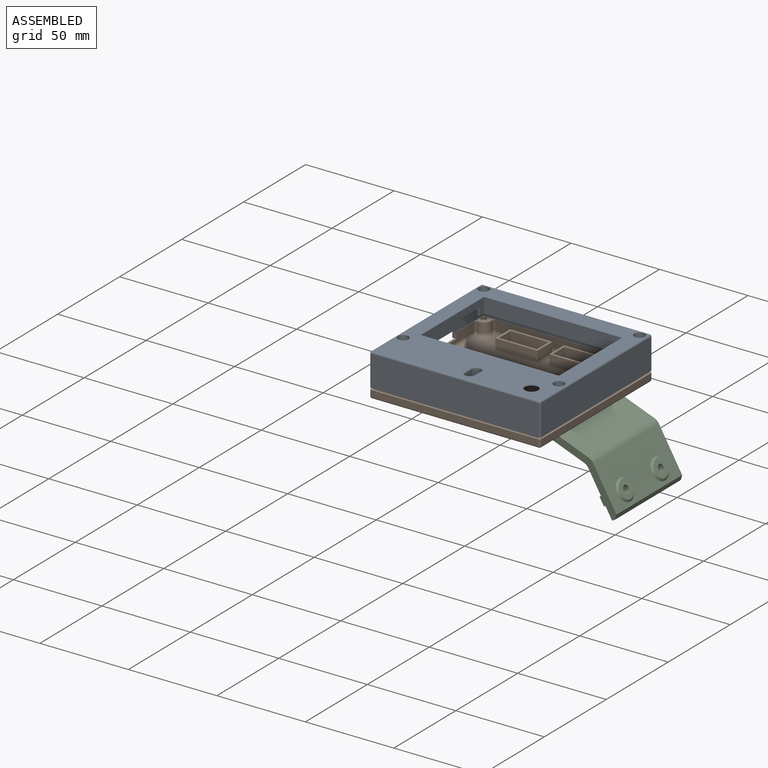
[diagram: assembled view]
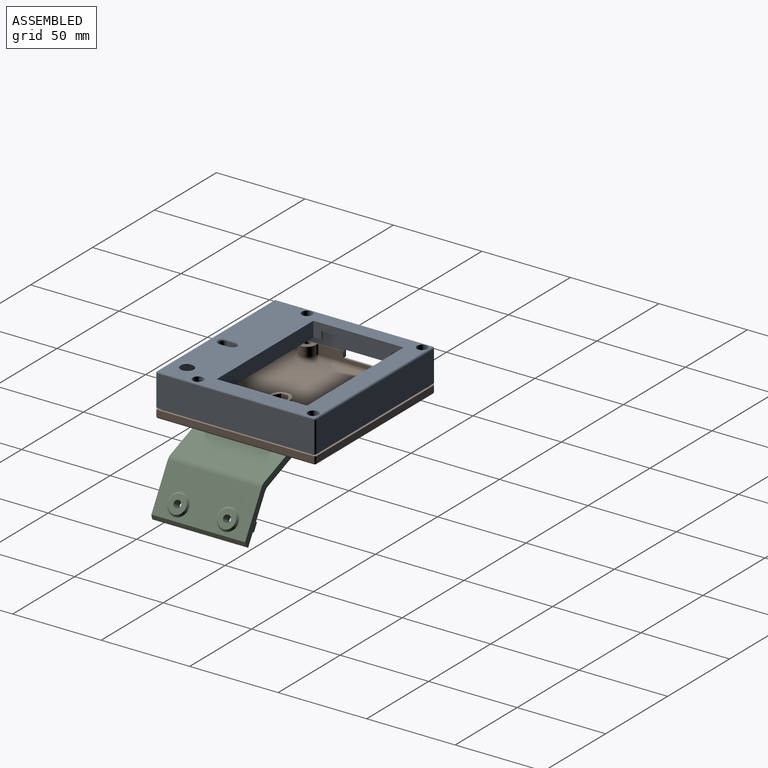
[diagram: assembled view, second angle]
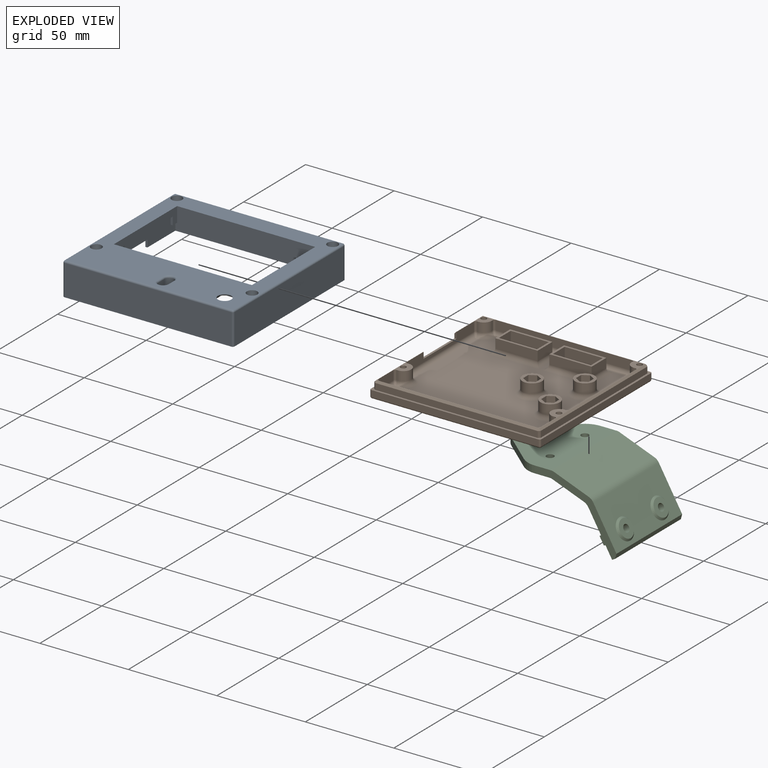
[diagram: exploded view]
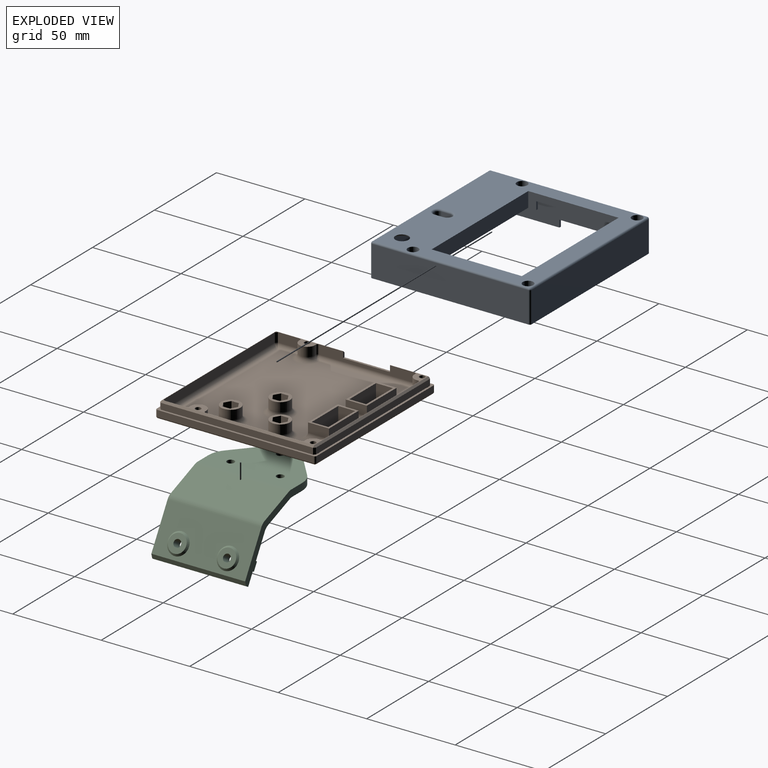
[diagram: exploded view, second angle]
ASSEMBLY  parts=3 mates=2
PART A: 117 faces, bbox 96.4x90.4x18.5 mm
  f0: plane 5.7x5mm, normal (-1,0,0), area 28.5mm2, adj f4,f5,f103,f108
  f1: plane 5.7x5mm, normal (1,0,0), area 28.5mm2, adj f4,f5,f106,f108
  f2: plane 5x4.7mm, normal (-1,0,0), area 23.5mm2, adj f6,f7,f95,f108
  f3: plane 5x4.7mm, normal (1,0,0), area 23.5mm2, adj f6,f7,f97,f108
  f4: cylinder r=2.7mm len=5.7mm, axis (0,0,1), area 48.3mm2, adj f0,f1,f104,f108
  f5: cylinder r=2.7mm len=5.7mm, axis (0,0,1), area 48.3mm2, adj f0,f1,f105,f108
  f6: cylinder r=4.2mm len=8.4mm, axis (0,0,1), area 62mm2, adj f2,f3,f94,f108
  f7: cylinder r=4.2mm len=8.4mm, axis (0,0,1), area 62mm2, adj f2,f3,f98,f108
  f8: plane 26.5x1.2mm, normal (0,0,-1), area 31.8mm2, adj f15,f63,f66,f67
  f9: plane 94x88mm, normal (0,0,-1), area 566.7mm2, adj f24,f25,f26,f27,f28,f29,f30,f31
  f10: plane 89.6x83.6mm, normal (0,0,-1), area 2383.7mm2, adj f69,f70,f71,f72,f75,f76,f77,f78
  f11: plane 78x8.5mm, normal (0,-1,0), area 663mm2, adj f12,f17,f23,f61
  f12: plane 51x8.5mm, normal (-1,0,0), area 433.5mm2, adj f11,f13,f23,f61
  f13: plane 78x8.5mm, normal (0,1,0), area 663mm2, adj f12,f17,f23,f61
  f14: plane 94.4x17.5mm, normal (0,1,0), area 1652mm2, adj f68,f101,f102,f112
  f15: plane 88.4x17.5mm, normal (-1,0,0), area 1441mm2, adj f8,f66,f67,f68,f99,f102,f109
  f16: plane 94.4x17.5mm, normal (0,-1,0), area 1652mm2, adj f68,f99,f100,f113
  f17: plane 51x8.5mm, normal (1,0,0), area 240mm2, adj f11,f13,f23,f50,f59,f60,f61
  f18: cylinder r=3mm len=6mm, axis (0,0,1), area 75.4mm2, adj f23,f54
  f19: cylinder r=3mm len=6mm, axis (0,0,1), area 75.4mm2, adj f23,f53
  f20: cylinder r=3mm len=6mm, axis (0,0,1), area 75.4mm2, adj f23,f52
  f21: cylinder r=3mm len=6mm, axis (0,0,1), area 75.4mm2, adj f23,f51
  f22: plane 88.4x17.5mm, normal (1,0,0), area 1547mm2, adj f68,f100,f101,f116
  f23: plane 94.4x88.4mm, normal (0,0,1), area 4129.7mm2, adj f11,f12,f13,f17,f18,f19,f20,f21
  f24: cylinder r=1mm len=6.5mm, axis (0,0,1), area 11.2mm2, adj f9,f25,f41,f91
  f25: plane 13.36x6.5mm, normal (-1,0,0), area 86.8mm2, adj f9,f24,f26,f93
  f26: plane 91.6x6.5mm, normal (0,1,0), area 595.4mm2, adj f9,f25,f27,f96
  f27: plane 13.36x6.5mm, normal (1,0,0), area 86.8mm2, adj f9,f26,f28,f92
  f28: cylinder r=1mm len=6.5mm, axis (0,0,1), area 11.2mm2, adj f9,f27,f29,f90
  f29: cylinder r=4.5mm len=9mm, axis (0,0,1), area 100.4mm2, adj f9,f28,f30,f88
  f30: cylinder r=1mm len=6.5mm, axis (0,0,1), area 11.2mm2, adj f9,f29,f31,f86
  f31: plane 54.12x6.5mm, normal (1,0,0), area 351.8mm2, adj f9,f30,f32,f84
  f32: cylinder r=1mm len=6.5mm, axis (0,0,1), area 11.2mm2, adj f9,f31,f33,f82
  f33: cylinder r=4.5mm len=6.5mm, axis (0,0,1), area 54.5mm2, adj f9,f32,f34,f77
  f34: cylinder r=1mm len=6.5mm, axis (0,0,1), area 11.2mm2, adj f9,f33,f35,f73
  f35: plane 77.12x6.5mm, normal (0,-1,0), area 501.3mm2, adj f9,f34,f36,f70
  f36: cylinder r=1mm len=6.5mm, axis (0,0,1), area 11.2mm2, adj f9,f35,f37,f74
  f37: cylinder r=4.5mm len=6.5mm, axis (0,0,1), area 54.5mm2, adj f9,f36,f38,f78
  f38: cylinder r=1mm len=6.5mm, axis (0,0,1), area 11.2mm2, adj f9,f37,f39,f83
  f39: plane 54.12x6.5mm, normal (-1,0,0), area 351.8mm2, adj f9,f38,f40,f85
  f40: cylinder r=1mm len=6.5mm, axis (0,0,1), area 11.2mm2, adj f9,f39,f41,f87
  f41: cylinder r=4.5mm len=9mm, axis (0,0,1), area 100.4mm2, adj f9,f24,f40,f89
  f42: plane 53.4x6.5mm, normal (1,0,0), area 347.1mm2, adj f43,f49,f61,f69
  f43: plane 80.4x6.5mm, normal (0,1,0), area 522.6mm2, adj f42,f44,f61,f72
  f44: plane 6.5x4.7mm, normal (-1,0,0), area 30.6mm2, adj f43,f45,f59,f61,f76
  f45: plane 3.8x2mm, normal (0,1,0), area 7.6mm2, adj f44,f46,f50,f81
  f46: plane 43x2mm, normal (-1,0,0), area 86mm2, adj f45,f47,f50,f80
  f47: plane 3.8x2mm, normal (0,-1,0), area 7.6mm2, adj f46,f48,f50,f79
  f48: plane 6.5x5.7mm, normal (-1,0,0), area 37.1mm2, adj f47,f49,f60,f61,f75
  f49: plane 80.4x6.5mm, normal (0,-1,0), area 522.6mm2, adj f42,f48,f61,f71
  f50: plane 43x5mm, normal (0,0,-1), area 215mm2, adj f17,f45,f46,f47,f59,f60
  f51: plane 6x6mm, normal (0,0,1), area 20.2mm2, adj f21,f57
  f52: plane 6x6mm, normal (0,0,1), area 20.2mm2, adj f20,f56
  f53: plane 6x6mm, normal (0,0,1), area 20.2mm2, adj f19,f55
  f54: plane 6x6mm, normal (0,0,1), area 20.2mm2, adj f18,f58
  f55: cylinder r=1.6mm len=4.5mm, axis (0,0,1), area 45.2mm2, adj f9,f53
  f56: cylinder r=1.6mm len=4.5mm, axis (0,0,1), area 45.2mm2, adj f9,f52
  f57: cylinder r=1.6mm len=4.5mm, axis (0,0,1), area 45.2mm2, adj f9,f51
  f58: cylinder r=1.6mm len=4.5mm, axis (0,0,1), area 45.2mm2, adj f9,f54
  f59: plane 4.5x1.2mm, normal (0,-1,0), area 5.4mm2, adj f17,f44,f50,f61
  f60: plane 4.5x1.2mm, normal (0,1,0), area 5.4mm2, adj f17,f48,f50,f61
  f61: plane 80.4x53.4mm, normal (0,0,-1), area 263.8mm2, adj f11,f12,f13,f17,f42,f43,f44,f48
  f62: plane 94x10mm, normal (0,1,0), area 940mm2, adj f9,f63,f65,f68
  f63: plane 88x10mm, normal (1,0,0), area 774mm2, adj f8,f9,f62,f64,f66,f67,f68
  f64: plane 94x10mm, normal (0,-1,0), area 940mm2, adj f9,f63,f65,f68
  f65: plane 88x10mm, normal (-1,0,0), area 880mm2, adj f9,f62,f64,f68
  f66: plane 4x1.2mm, normal (0,1,0), area 4.8mm2, adj f8,f15,f63,f68
  f67: plane 4x1.2mm, normal (0,-1,0), area 4.8mm2, adj f8,f15,f63,f68
  f68: plane 96.4x90.4mm, normal (0,0,-1), area 409.9mm2, adj f14,f15,f16,f22,f62,f63,f64,f65
  f69: cylinder r=1mm len=55.4mm, axis (0,1,0), area 85.5mm2, adj f10,f42,f71,f72
  f70: cylinder r=1mm len=77.12mm, axis (1,0,0), area 121.1mm2, adj f10,f35,f73,f74
  f71: cylinder r=1mm len=82.4mm, axis (1,0,0), area 127.9mm2, adj f10,f49,f69,f75
  f72: cylinder r=1mm len=82.4mm, axis (-1,0,0), area 127.9mm2, adj f10,f43,f69,f76
  f73: sphere r=1mm, area 1.7mm2, adj f34,f70,f77
  f74: sphere r=1mm, area 1.7mm2, adj f36,f70,f78
  f75: cylinder r=1mm len=6.7mm, axis (0,-1,0), area 9mm2, adj f10,f48,f71,f79
  f76: cylinder r=1mm len=5.7mm, axis (0,-1,0), area 7.4mm2, adj f10,f44,f72,f81
  f77: torus R=5.5mm, axis (0,0,1), area 14.2mm2, adj f10,f33,f73,f82
  f78: torus R=5.5mm, axis (0,0,1), area 14.2mm2, adj f10,f37,f74,f83
  f79: cylinder r=1mm len=4.7mm, axis (1,0,0), area 6mm2, adj f10,f47,f75,f80,f84
  f80: cylinder r=1mm len=44.8mm, axis (0,-1,0), area 64.6mm2, adj f46,f79,f81,f84
  f81: cylinder r=1mm len=4.7mm, axis (-1,0,0), area 6mm2, adj f10,f45,f76,f80,f84
  f82: sphere r=1mm, area 1.7mm2, adj f32,f77,f84
  f83: sphere r=1mm, area 1.7mm2, adj f38,f78,f85
  f84: cylinder r=1mm len=54.12mm, axis (0,1,0), area 80.5mm2, adj f10,f31,f79,f80,f81,f82,f86
  f85: cylinder r=1mm len=54.12mm, axis (0,-1,0), area 85mm2, adj f10,f39,f83,f87
  f86: sphere r=1mm, area 1.7mm2, adj f30,f84,f88
  f87: sphere r=1mm, area 1.7mm2, adj f40,f85,f89
  f88: torus R=5.5mm, axis (0,0,1), area 26.2mm2, adj f10,f29,f86,f90
  f89: torus R=5.5mm, axis (0,0,1), area 26.2mm2, adj f10,f41,f87,f91
  f90: sphere r=1mm, area 1.7mm2, adj f28,f88,f92
  f91: sphere r=1mm, area 1.7mm2, adj f24,f89,f93
  f92: cylinder r=1mm len=13.36mm, axis (0,1,0), area 20.2mm2, adj f10,f27,f90,f96
  f93: cylinder r=1mm len=13.36mm, axis (0,-1,0), area 20.2mm2, adj f10,f25,f91,f96
  f94: torus R=5.2mm, axis (0,0,1), area 22.5mm2, adj f6,f10,f95,f97
  f95: cylinder r=1mm len=5mm, axis (0,-1,0), area 7.9mm2, adj f2,f10,f94,f98
  f96: cylinder r=1mm len=91.6mm, axis (-1,0,0), area 138.8mm2, adj f10,f26,f92,f93,f98
  f97: cylinder r=1mm len=5mm, axis (0,1,0), area 7.9mm2, adj f3,f10,f94,f98
  f98: torus R=5.2mm, axis (0,0,1), area 18.8mm2, adj f7,f10,f95,f96,f97
  f99: cylinder r=1mm len=17.5mm, axis (0,0,1), area 27.5mm2, adj f15,f16,f68,f111
  f100: cylinder r=1mm len=17.5mm, axis (0,0,-1), area 27.5mm2, adj f16,f22,f68,f115
  f101: cylinder r=1mm len=17.5mm, axis (0,0,1), area 27.5mm2, adj f14,f22,f68,f114
  f102: cylinder r=1mm len=17.5mm, axis (0,0,-1), area 27.5mm2, adj f14,f15,f68,f110
  f103: cylinder r=1mm len=5mm, axis (0,-1,0), area 7.9mm2, adj f0,f23,f104,f105
  f104: torus R=3.7mm, axis (0,0,1), area 15.1mm2, adj f4,f23,f103,f106
  f105: torus R=3.7mm, axis (0,0,1), area 15.1mm2, adj f5,f23,f103,f106
  f106: cylinder r=1mm len=5mm, axis (0,1,0), area 7.9mm2, adj f1,f23,f104,f105
  f107: torus R=4.75mm, axis (0,0,1), area 40.6mm2, adj f10,f23
  f108: plane 13.4x8.4mm, normal (0,0,-1), area 47.5mm2, adj f0,f1,f2,f3,f4,f5,f6,f7
  f109: cylinder r=1mm len=88.4mm, axis (0,-1,0), area 138.9mm2, adj f15,f23,f110,f111
  f110: sphere r=1mm, area 1.6mm2, adj f102,f109,f112
  f111: sphere r=1mm, area 1.6mm2, adj f99,f109,f113
  f112: cylinder r=1mm len=94.4mm, axis (-1,0,0), area 148.3mm2, adj f14,f23,f110,f114
  f113: cylinder r=1mm len=94.4mm, axis (1,0,0), area 148.3mm2, adj f16,f23,f111,f115
  f114: sphere r=1mm, area 1.6mm2, adj f101,f112,f116
  f115: sphere r=1mm, area 1.6mm2, adj f100,f113,f116
  f116: cylinder r=1mm len=88.4mm, axis (0,1,0), area 138.9mm2, adj f22,f23,f114,f115
PART B: 171 faces, bbox 96.4x90.4x9 mm
  f0: plane 26.5x1.2mm, normal (0,0,1), area 31.8mm2, adj f44,f102,f105,f106
  f1: plane 96.4x90.4mm, normal (0,0,1), area 443.3mm2, adj f13,f14,f15,f16,f22,f23,f36,f37
  f2: plane 86.6x80.6mm, normal (0,0,1), area 5230.3mm2, adj f113,f114,f115,f116,f117,f118,f121,f122
  f3: plane 2.9x2.5mm, normal (0.5,-0.87,0), area 8.4mm2, adj f4,f34,f42,f75
  f4: plane 2.9x2.5mm, normal (-0.5,-0.87,0), area 8.4mm2, adj f3,f5,f42,f75
  f5: plane 3.35x2.5mm, normal (-1,0,0), area 8.4mm2, adj f4,f6,f42,f75
  f6: plane 2.9x2.5mm, normal (-0.5,0.87,0), area 8.4mm2, adj f5,f7,f42,f75
  f7: plane 2.9x2.5mm, normal (0.5,0.87,0), area 8.4mm2, adj f6,f34,f42,f75
  f8: plane 2.9x2.5mm, normal (0.5,-0.87,0), area 8.4mm2, adj f9,f35,f42,f76
  f9: plane 2.9x2.5mm, normal (-0.5,-0.87,0), area 8.4mm2, adj f8,f10,f42,f76
  f10: plane 3.35x2.5mm, normal (-1,0,0), area 8.4mm2, adj f9,f11,f42,f76
  f11: plane 2.9x2.5mm, normal (-0.5,0.87,0), area 8.4mm2, adj f10,f12,f42,f76
  f12: plane 2.9x2.5mm, normal (0.5,0.87,0), area 8.4mm2, adj f11,f35,f42,f76
  f13: plane 94.4x3.5mm, normal (0,1,0), area 330.4mm2, adj f1,f159,f163,f164
  f14: plane 88.4x3.5mm, normal (-1,0,0), area 309.4mm2, adj f1,f164,f168,f170
  f15: plane 94.4x3.5mm, normal (0,-1,0), area 330.4mm2, adj f1,f161,f167,f170
  f16: plane 4.5x2.9mm, normal (-0.5,-0.87,0), area 9.8mm2, adj f1,f17,f37,f42,f77,f78,f163
  f17: plane 3.35x2.5mm, normal (-1,0,0), area 8.4mm2, adj f16,f18,f42,f77
  f18: plane 2.9x2.5mm, normal (-0.5,0.87,0), area 8.4mm2, adj f17,f19,f42,f77
  f19: plane 2.9x2.5mm, normal (0.5,0.87,0), area 8.4mm2, adj f18,f20,f42,f77
  f20: plane 3.35x2.5mm, normal (1,0,0), area 8.4mm2, adj f19,f37,f42,f77
  f21: plane 3.35x2.5mm, normal (1,0,0), area 8.4mm2, adj f22,f38,f42,f83
  f22: plane 4.5x2.9mm, normal (0.5,-0.87,0), area 9.8mm2, adj f1,f21,f23,f42,f78,f83,f163
  f23: plane 4.5x2.9mm, normal (-0.5,-0.87,0), area 9.8mm2, adj f1,f22,f24,f42,f78,f83,f163
  f24: plane 3.35x2.5mm, normal (-1,0,0), area 8.4mm2, adj f23,f25,f42,f83
  f25: plane 2.9x2.5mm, normal (-0.5,0.87,0), area 8.4mm2, adj f24,f38,f42,f83
  f26: plane 21.5x9mm, normal (0,1,0), area 193.5mm2, adj f27,f39,f42,f108
  f27: plane 9.5x9mm, normal (1,0,0), area 85.5mm2, adj f26,f28,f42,f108
  f28: plane 21.5x9mm, normal (0,-1,0), area 193.5mm2, adj f27,f39,f42,f108
  f29: plane 21.5x9mm, normal (0,1,0), area 193.5mm2, adj f30,f40,f42,f109
  f30: plane 9.5x9mm, normal (1,0,0), area 85.5mm2, adj f29,f31,f42,f109
  f31: plane 21.5x9mm, normal (0,-1,0), area 193.5mm2, adj f30,f40,f42,f109
  f32: cylinder r=2.1mm len=4.2mm, axis (0,0,-1), area 33mm2, adj f42,f72
  f33: cylinder r=2.1mm len=4.2mm, axis (0,0,-1), area 33mm2, adj f42,f70
  f34: plane 3.35x2.5mm, normal (1,0,0), area 8.4mm2, adj f3,f7,f42,f75
  f35: plane 3.35x2.5mm, normal (1,0,0), area 8.4mm2, adj f8,f12,f42,f76
  f36: plane 88.4x3.5mm, normal (1,0,0), area 309.4mm2, adj f1,f159,f161,f162
  f37: plane 4.5x2.9mm, normal (0.5,-0.87,0), area 9.8mm2, adj f1,f16,f20,f42,f77,f78,f163
  f38: plane 2.9x2.5mm, normal (0.5,0.87,0), area 8.4mm2, adj f21,f25,f42,f83
  f39: plane 9.5x9mm, normal (-1,0,0), area 85.5mm2, adj f26,f28,f42,f108
  f40: plane 9.5x9mm, normal (-1,0,0), area 85.5mm2, adj f29,f31,f42,f109
  f41: cylinder r=2.1mm len=4.2mm, axis (0,0,-1), area 33mm2, adj f42,f74
  f42: plane 94.4x88.4mm, normal (0,0,-1), area 7778.4mm2, adj f3,f4,f5,f6,f7,f8,f9,f10
  f43: cylinder r=1mm len=5.3mm, axis (0,0,-1), area 9.1mm2, adj f44,f60,f107,f123
  f44: plane 54.12x5.3mm, normal (1,0,0), area 194.1mm2, adj f0,f43,f45,f105,f106,f107,f125
  f45: cylinder r=1mm len=5.3mm, axis (0,0,-1), area 9.1mm2, adj f44,f46,f107,f127
  f46: cylinder r=4.5mm len=5.3mm, axis (0,0,-1), area 44.4mm2, adj f45,f47,f107,f129
  f47: cylinder r=1mm len=5.3mm, axis (0,0,-1), area 9.1mm2, adj f46,f48,f107,f132
  f48: plane 77.12x5.3mm, normal (0,-1,0), area 408.7mm2, adj f47,f49,f107,f139
  f49: cylinder r=1mm len=5.3mm, axis (0,0,-1), area 9.1mm2, adj f48,f50,f107,f133
  f50: cylinder r=4.5mm len=5.3mm, axis (0,0,-1), area 44.4mm2, adj f49,f51,f107,f130
  f51: cylinder r=1mm len=5.3mm, axis (0,0,-1), area 9.1mm2, adj f50,f52,f107,f128
  f52: plane 54.12x5.3mm, normal (-1,0,0), area 286.8mm2, adj f51,f53,f107,f126
  f53: cylinder r=1mm len=5.3mm, axis (0,0,-1), area 9.1mm2, adj f52,f54,f107,f124
  f54: cylinder r=4.5mm len=9mm, axis (0,0,-1), area 81.9mm2, adj f53,f55,f107,f122
  f55: cylinder r=1mm len=5.3mm, axis (0,0,-1), area 9.1mm2, adj f54,f56,f107,f120
  f56: plane 12.36x5.3mm, normal (-1,0,0), area 65.5mm2, adj f55,f107,f118,f144
  f57: plane 89.6x5.3mm, normal (0,1,0), area 474.9mm2, adj f107,f116,f142,f144
  f58: plane 12.36x5.3mm, normal (1,0,0), area 65.5mm2, adj f59,f107,f117,f142
  f59: cylinder r=1mm len=5.3mm, axis (0,0,-1), area 9.1mm2, adj f58,f60,f107,f119
  f60: cylinder r=4.5mm len=9mm, axis (0,0,-1), area 81.9mm2, adj f43,f59,f107,f121
  f61: plane 11.9x5.3mm, normal (-1,0,0), area 63.1mm2, adj f62,f64,f108,f137
  f62: plane 23.9x5.3mm, normal (0,-1,0), area 126.7mm2, adj f61,f63,f108,f140
  f63: plane 11.9x5.3mm, normal (1,0,0), area 63.1mm2, adj f62,f64,f108,f141
  f64: plane 23.9x5.3mm, normal (0,1,0), area 126.7mm2, adj f61,f63,f108,f138
  f65: plane 11.9x5.3mm, normal (1,0,0), area 63.1mm2, adj f66,f68,f109,f134
  f66: plane 23.9x5.3mm, normal (0,1,0), area 126.7mm2, adj f65,f67,f109,f135
  f67: plane 11.9x5.3mm, normal (-1,0,0), area 63.1mm2, adj f66,f68,f109,f136
  f68: plane 23.9x5.3mm, normal (0,-1,0), area 126.7mm2, adj f65,f67,f109,f131
  f69: cylinder r=5.5mm len=11mm, axis (0,0,-1), area 183.2mm2, adj f110,f115
  f70: plane 8.31x7.2mm, normal (0,0,1), area 31mm2, adj f33,f84,f85,f86,f87,f88,f89
  f71: cylinder r=5.5mm len=11mm, axis (0,0,-1), area 183.2mm2, adj f111,f114
  f72: plane 8.31x7.2mm, normal (0,0,1), area 31mm2, adj f32,f90,f91,f92,f93,f94,f95
  f73: cylinder r=5.5mm len=11mm, axis (0,0,-1), area 183.2mm2, adj f112,f113
  f74: plane 8.31x7.2mm, normal (0,0,1), area 31mm2, adj f41,f96,f97,f98,f99,f100,f101
  f75: plane 6.7x5.8mm, normal (0,0,-1), area 21.1mm2, adj f3,f4,f5,f6,f7,f34,f82
  f76: plane 6.7x5.8mm, normal (0,0,-1), area 21.1mm2, adj f8,f9,f10,f11,f12,f35,f79
  f77: plane 6.35x5.8mm, normal (0,0,-1), area 20.9mm2, adj f16,f17,f18,f19,f20,f37,f78,f80
  f78: plane 92x5.5mm, normal (0,1,0), area 326.8mm2, adj f1,f16,f22,f23,f37,f77,f83,f152
  f79: cylinder r=1.6mm len=6.5mm, axis (0,0,-1), area 65.3mm2, adj f76,f107
  f80: cylinder r=1.6mm len=6.5mm, axis (0,0,-1), area 65.3mm2, adj f77,f107
  f81: cylinder r=1.6mm len=6.5mm, axis (0,0,-1), area 65.3mm2, adj f83,f107
  f82: cylinder r=1.6mm len=6.5mm, axis (0,0,-1), area 65.3mm2, adj f75,f107
  f83: plane 6.35x5.8mm, normal (0,0,-1), area 20.9mm2, adj f21,f22,f23,f24,f25,f38,f78,f81
  f84: plane 6.5x4.16mm, normal (-1,0,0), area 27mm2, adj f70,f85,f89,f110
  f85: plane 6.5x3.6mm, normal (-0.5,0.87,0), area 27mm2, adj f70,f84,f86,f110
  f86: plane 6.5x3.6mm, normal (0.5,0.87,0), area 27mm2, adj f70,f85,f87,f110
  f87: plane 6.5x4.16mm, normal (1,0,0), area 27mm2, adj f70,f86,f88,f110
  f88: plane 6.5x3.6mm, normal (0.5,-0.87,0), area 27mm2, adj f70,f87,f89,f110
  f89: plane 6.5x3.6mm, normal (-0.5,-0.87,0), area 27mm2, adj f70,f84,f88,f110
  f90: plane 6.5x3.6mm, normal (-0.5,0.87,0), area 27mm2, adj f72,f91,f95,f111
  f91: plane 6.5x3.6mm, normal (0.5,0.87,0), area 27mm2, adj f72,f90,f92,f111
  f92: plane 6.5x4.16mm, normal (1,0,0), area 27mm2, adj f72,f91,f93,f111
  f93: plane 6.5x3.6mm, normal (0.5,-0.87,0), area 27mm2, adj f72,f92,f94,f111
  f94: plane 6.5x3.6mm, normal (-0.5,-0.87,0), area 27mm2, adj f72,f93,f95,f111
  f95: plane 6.5x4.16mm, normal (-1,0,0), area 27mm2, adj f72,f90,f94,f111
  f96: plane 6.5x3.6mm, normal (-0.5,0.87,0), area 27mm2, adj f74,f97,f101,f112
  f97: plane 6.5x3.6mm, normal (0.5,0.87,0), area 27mm2, adj f74,f96,f98,f112
  f98: plane 6.5x4.16mm, normal (1,0,0), area 27mm2, adj f74,f97,f99,f112
  f99: plane 6.5x3.6mm, normal (0.5,-0.87,0), area 27mm2, adj f74,f98,f100,f112
  f100: plane 6.5x3.6mm, normal (-0.5,-0.87,0), area 27mm2, adj f74,f99,f101,f112
  f101: plane 6.5x4.16mm, normal (-1,0,0), area 27mm2, adj f74,f96,f100,f112
  f102: plane 86x3.5mm, normal (-1,0,0), area 234.8mm2, adj f0,f1,f105,f106,f146,f147,f156,f158
  f103: plane 92x3.5mm, normal (0,-1,0), area 322mm2, adj f1,f146,f149,f150
  f104: plane 86x3.5mm, normal (1,0,0), area 301mm2, adj f1,f149,f152,f153
  f105: plane 3.5x1.2mm, normal (0,-1,0), area 3.7mm2, adj f0,f44,f102,f107,f156
  f106: plane 3.5x1.2mm, normal (0,1,0), area 3.7mm2, adj f0,f44,f102,f107,f147
  f107: plane 92x86mm, normal (0,0,1), area 202.4mm2, adj f43,f44,f45,f46,f47,f48,f49,f50
  f108: plane 23.9x11.9mm, normal (0,0,1), area 80.2mm2, adj f26,f27,f28,f39,f61,f62,f63,f64
  f109: plane 23.9x11.9mm, normal (0,0,1), area 80.2mm2, adj f29,f30,f31,f40,f65,f66,f67,f68
  f110: plane 11x11mm, normal (0,0,1), area 50.1mm2, adj f69,f84,f85,f86,f87,f88,f89
  f111: plane 11x11mm, normal (0,0,1), area 50.1mm2, adj f71,f90,f91,f92,f93,f94,f95
  f112: plane 11x11mm, normal (0,0,1), area 50.1mm2, adj f73,f96,f97,f98,f99,f100,f101
  f113: torus R=8mm, axis (0,0,1), area 158.1mm2, adj f2,f73
  f114: torus R=8mm, axis (0,0,1), area 158.1mm2, adj f2,f71
  f115: torus R=8mm, axis (0,0,1), area 158.1mm2, adj f2,f69
  f116: cylinder r=2.5mm len=89.6mm, axis (-1,0,0), area 346mm2, adj f2,f57,f143,f145
  f117: cylinder r=2.5mm len=12.36mm, axis (0,1,0), area 42.6mm2, adj f2,f58,f119,f143
  f118: cylinder r=2.5mm len=12.36mm, axis (0,-1,0), area 42.6mm2, adj f2,f56,f120,f145
  f119: bspline ~2.68x2.67mm, area 3.1mm2, adj f59,f117,f121
  f120: bspline ~2.51x2.5mm, area 3.1mm2, adj f55,f118,f122
  f121: torus R=7mm, axis (0,0,1), area 67.3mm2, adj f2,f60,f119,f123
  f122: torus R=7mm, axis (0,0,1), area 67.3mm2, adj f2,f54,f120,f124
  f123: bspline ~2.51x2.5mm, area 3.1mm2, adj f43,f121,f125
  f124: bspline ~2.51x2.5mm, area 3.1mm2, adj f53,f122,f126
  f125: cylinder r=2.5mm len=54.12mm, axis (0,1,0), area 206.5mm2, adj f2,f44,f123,f127
  f126: cylinder r=2.5mm len=54.12mm, axis (0,-1,0), area 206.5mm2, adj f2,f52,f124,f128
  f127: bspline ~2.51x2.5mm, area 3.1mm2, adj f45,f125,f129
  f128: bspline ~2.51x2.5mm, area 3.1mm2, adj f51,f126,f130
  f129: torus R=7mm, axis (0,0,1), area 33.9mm2, adj f2,f46,f127,f132
  f130: torus R=7mm, axis (0,0,1), area 33.9mm2, adj f2,f50,f128,f133
  f131: cylinder r=2.5mm len=28.9mm, axis (1,0,0), area 103.7mm2, adj f2,f68,f134,f136
  f132: bspline ~2.51x2.5mm, area 3.1mm2, adj f47,f129,f139
  f133: bspline ~2.51x2.5mm, area 3.1mm2, adj f49,f130,f139
  f134: cylinder r=2.5mm len=16.7mm, axis (0,1,0), area 53.8mm2, adj f2,f65,f131,f135,f139
  f135: cylinder r=2.5mm len=28.5mm, axis (-1,0,0), area 97.6mm2, adj f66,f134,f136,f139
  f136: cylinder r=2.5mm len=16.7mm, axis (0,-1,0), area 53.8mm2, adj f2,f67,f131,f135,f139
  f137: cylinder r=2.5mm len=16.7mm, axis (0,-1,0), area 53.8mm2, adj f2,f61,f138,f139,f140
  f138: cylinder r=2.5mm len=28.5mm, axis (-1,0,0), area 97.6mm2, adj f64,f137,f139,f141
  f139: cylinder r=2.5mm len=77.12mm, axis (1,0,0), area 286.8mm2, adj f2,f48,f132,f133,f134,f135,f136,f137
  f140: cylinder r=2.5mm len=28.9mm, axis (1,0,0), area 103.7mm2, adj f2,f62,f137,f141
  f141: cylinder r=2.5mm len=16.7mm, axis (0,1,0), area 53.8mm2, adj f2,f63,f138,f139,f140
  f142: plane 5.3x1mm, normal (0.71,0.71,0), area 7.5mm2, adj f57,f58,f107,f143
  f143: bspline ~2.53x2.53mm, area 2.3mm2, adj f116,f117,f142
  f144: plane 5.3x1mm, normal (-0.71,0.71,0), area 7.5mm2, adj f56,f57,f107,f145
  f145: bspline ~2.53x2.53mm, area 2.3mm2, adj f116,f118,f144
  f146: plane 3.5x1mm, normal (-0.71,-0.71,0), area 4.9mm2, adj f1,f102,f103,f148
  f147: plane 38x1mm, normal (-0.71,0,0.71), area 53.7mm2, adj f102,f106,f107,f148
  f148: plane 1x1mm, normal (-0.58,-0.58,0.58), area 0.9mm2, adj f146,f147,f150
  f149: plane 3.5x1mm, normal (0.71,-0.71,0), area 4.9mm2, adj f1,f103,f104,f151
  f150: plane 92x1mm, normal (0,-0.71,0.71), area 130.1mm2, adj f103,f107,f148,f151
  f151: plane 1x1mm, normal (0.58,-0.58,0.58), area 0.9mm2, adj f149,f150,f153
  f152: plane 3.5x1mm, normal (0.71,0.71,0), area 4.9mm2, adj f1,f78,f104,f154
  f153: plane 86x1mm, normal (0.71,0,0.71), area 121.6mm2, adj f104,f107,f151,f154
  f154: plane 1x1mm, normal (0.58,0.58,0.58), area 0.9mm2, adj f152,f153,f155
  f155: plane 92x1mm, normal (0,0.71,0.71), area 130.1mm2, adj f78,f107,f154,f157
  f156: plane 21.5x1mm, normal (-0.71,0,0.71), area 30.4mm2, adj f102,f105,f107,f157
  f157: plane 1x1mm, normal (-0.58,0.58,0.58), area 0.9mm2, adj f155,f156,f158
  f158: plane 3.5x1mm, normal (-0.71,0.71,0), area 4.9mm2, adj f1,f78,f102,f157
  f159: cylinder r=1mm len=3.5mm, axis (0,0,-1), area 5.5mm2, adj f1,f13,f36,f160
  f160: sphere r=1mm, area 1mm2, adj f159,f162,f163
  f161: cylinder r=1mm len=3.5mm, axis (0,0,1), area 5.5mm2, adj f1,f15,f36,f165
  f162: cylinder r=1mm len=88.4mm, axis (0,1,0), area 138.9mm2, adj f36,f42,f160,f165
  f163: cylinder r=1mm len=94.4mm, axis (-1,0,0), area 148.2mm2, adj f13,f16,f22,f23,f37,f42,f160,f166
  f164: cylinder r=1mm len=3.5mm, axis (0,0,1), area 5.5mm2, adj f1,f13,f14,f166
  f165: sphere r=1mm, area 1.6mm2, adj f161,f162,f167
  f166: sphere r=1mm, area 2.1mm2, adj f163,f164,f168
  f167: cylinder r=1mm len=94.4mm, axis (1,0,0), area 148.3mm2, adj f15,f42,f165,f169
  f168: cylinder r=1mm len=88.4mm, axis (0,-1,0), area 138.9mm2, adj f14,f42,f166,f169
  f169: sphere r=1mm, area 1.6mm2, adj f167,f168,f170
  f170: cylinder r=1mm len=3.5mm, axis (0,0,-1), area 5.5mm2, adj f1,f14,f15,f169
PART C: 38 faces, bbox 76.2x53x36.5 mm
  f0: plane 53x38.34mm, normal (0,0,1), area 1067.3mm2, adj f2,f3,f4,f5,f6,f7,f10,f28
  f1: plane 53x12.39mm, normal (-0.87,0,0.5), area 758.2mm2, adj f2,f3,f17,f29
  f2: plane 46.21x36.48mm, normal (0,-1,0), area 249.5mm2, adj f0,f1,f10,f12,f16,f17,f20,f21
  f3: plane 46.21x36.48mm, normal (0,1,0), area 249.5mm2, adj f0,f1,f4,f12,f16,f17,f20,f21
  f4: cylinder r=12.5mm len=8.18mm, axis (0,0,1), area 35.7mm2, adj f0,f3,f5,f12
  f5: plane 18.36x15.89mm, normal (-0.65,0.76,0), area 97.1mm2, adj f0,f4,f6,f12
  f6: cylinder r=10mm len=15.12mm, axis (0,0,1), area 68.6mm2, adj f0,f5,f7,f12
  f7: plane 18.36x15.89mm, normal (-0.65,-0.76,0), area 97.1mm2, adj f0,f6,f10,f12
  f8: cylinder r=2.1mm len=5mm, axis (0,0,1), area 66mm2, adj f12,f14
  f9: cylinder r=2.1mm len=5mm, axis (0,0,1), area 66mm2, adj f12,f13
  f10: cylinder r=12.5mm len=8.18mm, axis (0,0,1), area 35.7mm2, adj f0,f2,f7,f12
  f11: cylinder r=2.1mm len=5mm, axis (0,0,1), area 66mm2, adj f12,f15
  f12: plane 53x39.08mm, normal (0,0,-1), area 1463.1mm2, adj f2,f3,f4,f5,f6,f7,f8,f9
  f13: plane 11x11mm, normal (0,0,1), area 81.2mm2, adj f9,f35
  f14: plane 11x11mm, normal (0,0,1), area 81.2mm2, adj f8,f33
  f15: plane 11x11mm, normal (0,0,1), area 81.2mm2, adj f11,f34
  f16: plane 53x0.87mm, normal (0.5,0,0.87), area 53mm2, adj f2,f3,f20,f23
  f17: plane 53x0.87mm, normal (-0.5,0,-0.87), area 53mm2, adj f1,f2,f3,f20
  f18: cylinder r=2.1mm len=7.3mm, axis (0.87,0,-0.5), area 79.2mm2, adj f20,f25
  f19: cylinder r=2.1mm len=7.3mm, axis (0.87,0,-0.5), area 79.2mm2, adj f20,f24
  f20: plane 53x4.33mm, normal (-0.87,0,0.5), area 237.3mm2, adj f2,f3,f16,f17,f18,f19
  f21: plane 53x1.73mm, normal (0.5,0,0.87), area 106mm2, adj f2,f3,f23,f32
  f22: plane 53x22.71mm, normal (0.87,0,-0.5), area 1163.8mm2, adj f2,f3,f30,f32,f36,f37
  f23: plane 53x6.5mm, normal (-0.87,0,0.5), area 397.5mm2, adj f2,f3,f16,f21
  f24: plane 10x8.66mm, normal (0.87,0,-0.5), area 64.7mm2, adj f19,f36
  f25: plane 10x8.66mm, normal (0.87,0,-0.5), area 64.7mm2, adj f18,f37
  f26: plane 53x19.69mm, normal (0.36,0,-0.93), area 1117.5mm2, adj f2,f3,f30,f31
  f27: plane 53x17.68mm, normal (-0.36,0,0.93), area 1003.2mm2, adj f2,f3,f28,f29
  f28: cylinder r=5mm len=53mm, axis (0,-1,0), area 96.8mm2, adj f0,f2,f3,f27
  f29: cylinder r=5mm len=53mm, axis (0,1,0), area 180.7mm2, adj f1,f2,f3,f27
  f30: cylinder r=5mm len=53mm, axis (0,-1,0), area 180.7mm2, adj f2,f3,f22,f26
  f31: cylinder r=5mm len=53mm, axis (0,-1,0), area 96.8mm2, adj f2,f3,f12,f26
  f32: plane 53x2.73mm, normal (0.97,0,0.26), area 149.9mm2, adj f2,f3,f21,f22
  f33: cone r=5.5mm half-angle=45deg, axis (0,0,-1), area 53.3mm2, adj f0,f14
  f34: cone r=5.5mm half-angle=45deg, axis (0,0,-1), area 53.3mm2, adj f0,f15
  f35: cone r=5.5mm half-angle=45deg, axis (0,0,-1), area 53.3mm2, adj f0,f13
  f36: cone r=6mm half-angle=45deg, axis (-0.87,0,0.5), area 48.9mm2, adj f22,f24
  f37: cone r=6mm half-angle=45deg, axis (-0.87,0,0.5), area 48.9mm2, adj f22,f25
PLACE A t=(91.88,-1.11,64.39)mm
PLACE B t=(91.88,-1.11,40.39)mm
PLACE C rot(axis=(1,0,0),180deg) t=(123.88,-1.11,36.39)mm
MATE fastened C.f6 <-> B.f41  axis (0,0,-1) through (103.88,-1.11,40.39)mm
MATE fastened A.f63 <-> B.f102  axis (1,0,0) through (44.88,20.39,45.89)mm
